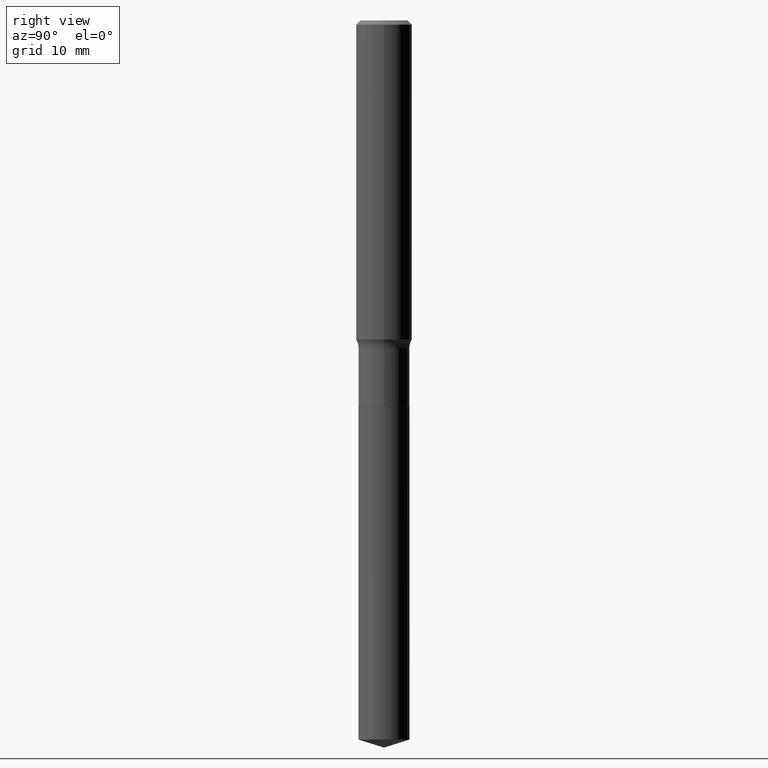
[diagram: clean part render]
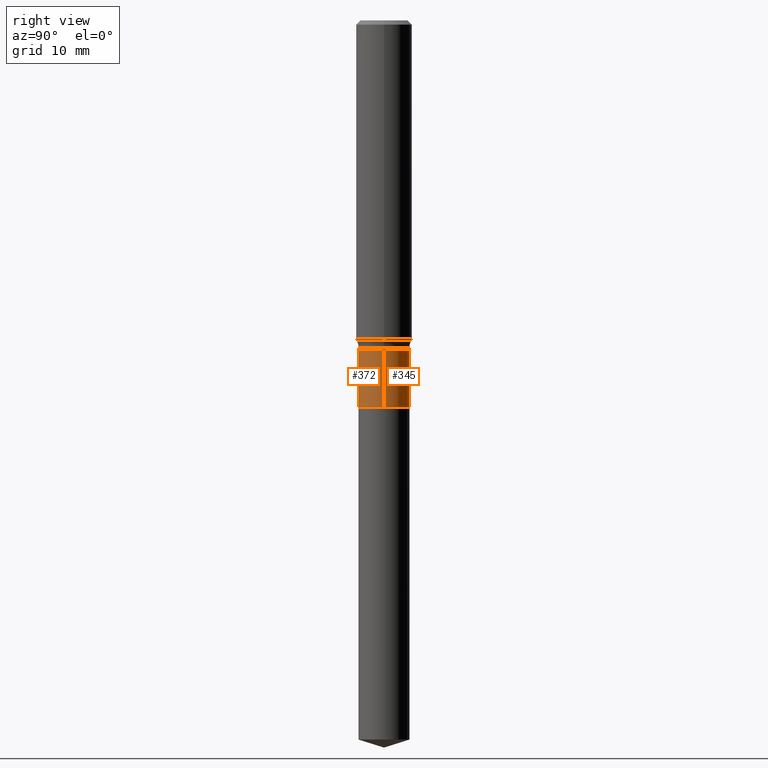
[diagram: same view with one multi-face feature highlighted, each face labeled with its STEP entity id]
A machine part, right view. The highlighted faces form ONE feature: a constant-radius fillet chain: 2 tangent blend faces with common blend radius 2.8956 mm. The faces share edges in the B-rep.
Their STEP definitions:
[1] entity #345 (Cylinder):
#7 = DIRECTION ( 'NONE',  ( -2.445468806185136597E-29, 3.491481338843145583E-15, 1.000000000000000000 ) ) ;
#16 = ORIENTED_EDGE ( 'NONE', *, *, #139, .T. ) ;
#21 = VECTOR ( 'NONE', #79, 39.37007874015748143 ) ;
#44 = EDGE_CURVE ( 'NONE', #251, #176, #185, .T. ) ;
#50 = CARTESIAN_POINT ( 'NONE',  ( 4.224547362684823628E-29, -6.031534012851534644E-15, -1.727500000000000036 ) ) ;
#73 = DIRECTION ( 'NONE',  ( -2.445468806185136597E-29, 3.491481338843145583E-15, 1.000000000000000000 ) ) ;
#79 = DIRECTION ( 'NONE',  ( -2.445468806185136877E-29, 3.491481338843145188E-15, 1.000000000000000000 ) ) ;
#95 = CIRCLE ( 'NONE', #327, 0.1140000000000000041 ) ;
#122 = EDGE_CURVE ( 'NONE', #235, #226, #450, .T. ) ;
#123 = VECTOR ( 'NONE', #341, 39.37007874015748143 ) ;
#126 = AXIS2_PLACEMENT_3D ( 'NONE', #190, #336, #150 ) ;
#129 = CARTESIAN_POINT ( 'NONE',  ( 0.1140000000000000041, -6.827591758107768670E-15, -1.727500000000000036 ) ) ;
#139 = EDGE_CURVE ( 'NONE', #235, #251, #95, .T. ) ;
#140 = ORIENTED_EDGE ( 'NONE', *, *, #361, .F. ) ;
#150 = DIRECTION ( 'NONE',  ( 1.000000000000000000, -6.982962677686267499E-15, 4.876176775795936353E-29 ) ) ;
#152 = CYLINDRICAL_SURFACE ( 'NONE', #126, 0.1139999999999999764 ) ;
#162 = DIRECTION ( 'NONE',  ( 1.000000000000000000, -6.982962677686265133E-15, 0.000000000000000000 ) ) ;
#165 = CARTESIAN_POINT ( 'NONE',  ( -0.1140000000000000041, -4.764654960897394479E-15, -1.727500000000000036 ) ) ;
#176 = VERTEX_POINT ( 'NONE', #426 ) ;
#179 = CIRCLE ( 'NONE', #342, 0.1139999999999999625 ) ;
#185 = LINE ( 'NONE', #445, #123 ) ;
#190 = CARTESIAN_POINT ( 'NONE',  ( 0.000000000000000000, 0.000000000000000000, 0.000000000000000000 ) ) ;
#214 = ORIENTED_EDGE ( 'NONE', *, *, #44, .T. ) ;
#226 = VERTEX_POINT ( 'NONE', #306 ) ;
#235 = VERTEX_POINT ( 'NONE', #129 ) ;
#251 = VERTEX_POINT ( 'NONE', #165 ) ;
#264 = DIRECTION ( 'NONE',  ( 1.000000000000000000, -6.982962677686267499E-15, 0.000000000000000000 ) ) ;
#289 = ORIENTED_EDGE ( 'NONE', *, *, #122, .F. ) ;
#291 = FACE_OUTER_BOUND ( 'NONE', #466, .T. ) ;
#306 = CARTESIAN_POINT ( 'NONE',  ( 0.1139999999999999625, -5.913871091732516626E-15, -1.465799999999999992 ) ) ;
#327 = AXIS2_PLACEMENT_3D ( 'NONE', #50, #7, #162 ) ;
#336 = DIRECTION ( 'NONE',  ( -2.445468806185136597E-29, 3.491481338843145583E-15, 1.000000000000000000 ) ) ;
#341 = DIRECTION ( 'NONE',  ( -2.445468806185136877E-29, 3.491481338843145188E-15, 1.000000000000000000 ) ) ;
#342 = AXIS2_PLACEMENT_3D ( 'NONE', #449, #73, #264 ) ;
#345 = ADVANCED_FACE ( 'NONE', ( #291 ), #152, .T. ) ;
#361 = EDGE_CURVE ( 'NONE', #226, #176, #179, .T. ) ;
#420 = CARTESIAN_POINT ( 'NONE',  ( 0.1139999999999999764, -7.960577452562343222E-16, 5.558841524407366075E-30 ) ) ;
#426 = CARTESIAN_POINT ( 'NONE',  ( -0.1139999999999999625, -4.764654960897394479E-15, -1.465799999999999992 ) ) ;
#445 = CARTESIAN_POINT ( 'NONE',  ( -0.1139999999999999764, 8.100187187665140439E-16, -5.607586002890591644E-30 ) ) ;
#449 = CARTESIAN_POINT ( 'NONE',  ( 3.584568176106173081E-29, -5.117813346476282599E-15, -1.465799999999999992 ) ) ;
#450 = LINE ( 'NONE', #420, #21 ) ;
#466 = EDGE_LOOP ( 'NONE', ( #16, #214, #140, #289 ) ) ;
[2] entity #372 (Cylinder):
#12 = EDGE_CURVE ( 'NONE', #176, #226, #278, .T. ) ;
#14 = CARTESIAN_POINT ( 'NONE',  ( 3.584568176106173081E-29, -5.117813346476282599E-15, -1.465799999999999992 ) ) ;
#21 = VECTOR ( 'NONE', #79, 39.37007874015748143 ) ;
#24 = AXIS2_PLACEMENT_3D ( 'NONE', #255, #26, #277 ) ;
#26 = DIRECTION ( 'NONE',  ( -2.445468806185136597E-29, 3.491481338843145583E-15, 1.000000000000000000 ) ) ;
#44 = EDGE_CURVE ( 'NONE', #251, #176, #185, .T. ) ;
#52 = AXIS2_PLACEMENT_3D ( 'NONE', #14, #286, #429 ) ;
#79 = DIRECTION ( 'NONE',  ( -2.445468806185136877E-29, 3.491481338843145188E-15, 1.000000000000000000 ) ) ;
#91 = CIRCLE ( 'NONE', #408, 0.1140000000000000041 ) ;
#100 = ORIENTED_EDGE ( 'NONE', *, *, #130, .T. ) ;
#101 = ORIENTED_EDGE ( 'NONE', *, *, #44, .F. ) ;
#122 = EDGE_CURVE ( 'NONE', #235, #226, #450, .T. ) ;
#123 = VECTOR ( 'NONE', #341, 39.37007874015748143 ) ;
#129 = CARTESIAN_POINT ( 'NONE',  ( 0.1140000000000000041, -6.827591758107768670E-15, -1.727500000000000036 ) ) ;
#130 = EDGE_CURVE ( 'NONE', #251, #235, #91, .T. ) ;
#165 = CARTESIAN_POINT ( 'NONE',  ( -0.1140000000000000041, -4.764654960897394479E-15, -1.727500000000000036 ) ) ;
#176 = VERTEX_POINT ( 'NONE', #426 ) ;
#185 = LINE ( 'NONE', #445, #123 ) ;
#191 = ORIENTED_EDGE ( 'NONE', *, *, #122, .T. ) ;
#226 = VERTEX_POINT ( 'NONE', #306 ) ;
#235 = VERTEX_POINT ( 'NONE', #129 ) ;
#251 = VERTEX_POINT ( 'NONE', #165 ) ;
#255 = CARTESIAN_POINT ( 'NONE',  ( 0.000000000000000000, 0.000000000000000000, 0.000000000000000000 ) ) ;
#277 = DIRECTION ( 'NONE',  ( 1.000000000000000000, -6.982962677686267499E-15, 4.876176775795936353E-29 ) ) ;
#278 = CIRCLE ( 'NONE', #52, 0.1139999999999999625 ) ;
#286 = DIRECTION ( 'NONE',  ( -2.445468806185136597E-29, 3.491481338843145583E-15, 1.000000000000000000 ) ) ;
#306 = CARTESIAN_POINT ( 'NONE',  ( 0.1139999999999999625, -5.913871091732516626E-15, -1.465799999999999992 ) ) ;
#315 = EDGE_LOOP ( 'NONE', ( #101, #100, #191, #387 ) ) ;
#341 = DIRECTION ( 'NONE',  ( -2.445468806185136877E-29, 3.491481338843145188E-15, 1.000000000000000000 ) ) ;
#347 = CYLINDRICAL_SURFACE ( 'NONE', #24, 0.1139999999999999764 ) ;
#372 = ADVANCED_FACE ( 'NONE', ( #380 ), #347, .T. ) ;
#380 = FACE_OUTER_BOUND ( 'NONE', #315, .T. ) ;
#384 = DIRECTION ( 'NONE',  ( -2.445468806185136597E-29, 3.491481338843145583E-15, 1.000000000000000000 ) ) ;
#387 = ORIENTED_EDGE ( 'NONE', *, *, #12, .F. ) ;
#408 = AXIS2_PLACEMENT_3D ( 'NONE', #486, #384, #476 ) ;
#420 = CARTESIAN_POINT ( 'NONE',  ( 0.1139999999999999764, -7.960577452562343222E-16, 5.558841524407366075E-30 ) ) ;
#426 = CARTESIAN_POINT ( 'NONE',  ( -0.1139999999999999625, -4.764654960897394479E-15, -1.465799999999999992 ) ) ;
#429 = DIRECTION ( 'NONE',  ( 1.000000000000000000, -6.982962677686267499E-15, 0.000000000000000000 ) ) ;
#445 = CARTESIAN_POINT ( 'NONE',  ( -0.1139999999999999764, 8.100187187665140439E-16, -5.607586002890591644E-30 ) ) ;
#450 = LINE ( 'NONE', #420, #21 ) ;
#476 = DIRECTION ( 'NONE',  ( 1.000000000000000000, -6.982962677686265133E-15, 0.000000000000000000 ) ) ;
#486 = CARTESIAN_POINT ( 'NONE',  ( 4.224547362684823628E-29, -6.031534012851534644E-15, -1.727500000000000036 ) ) ;